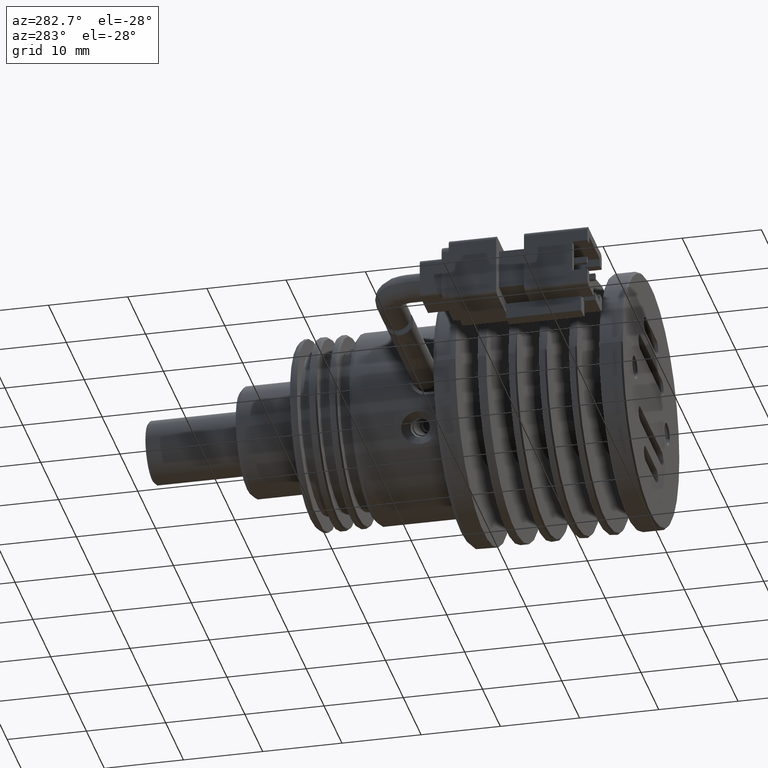
[diagram: clean part render]
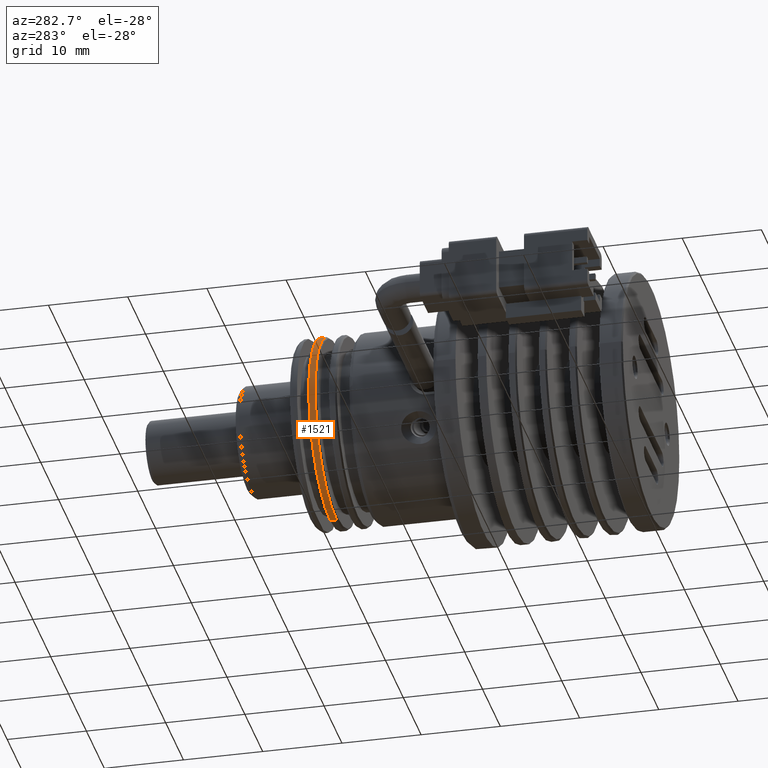
[diagram: same view with one face highlighted and labeled with its STEP entity id]
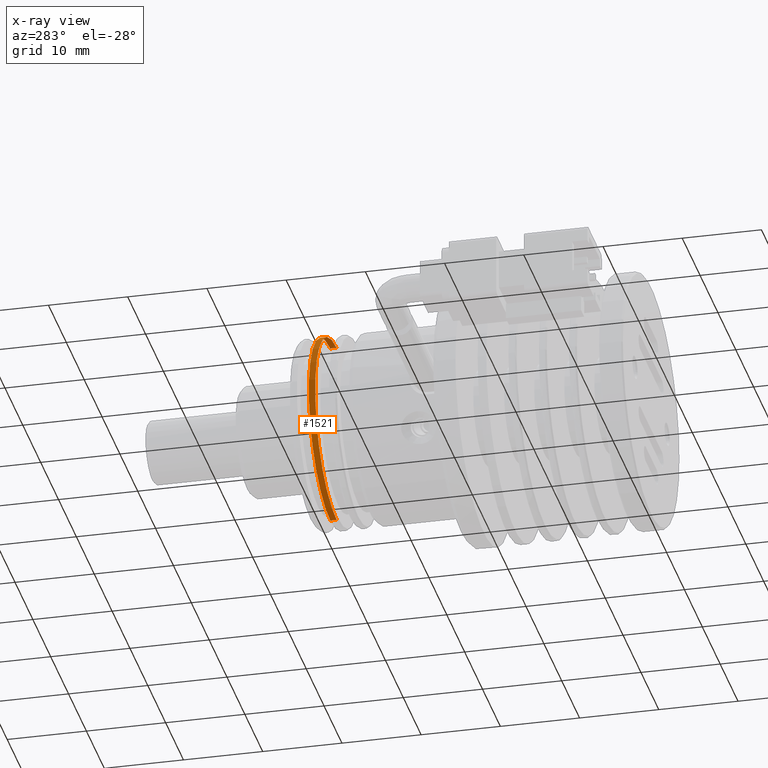
[diagram: x-ray of the same camera — body ghosted, the highlighted face saturated]
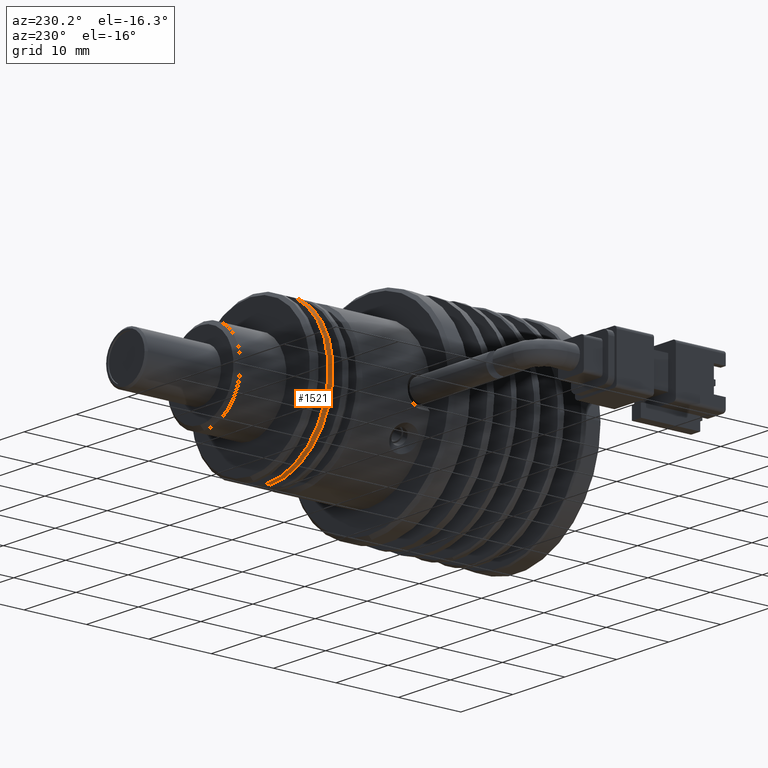
[diagram: same view with one face highlighted and labeled with its STEP entity id]
A machine part, auxiliary view. The second image highlights one B-rep face of the part: STEP entity #1521.
The next image is the same camera in x-ray: the body ghosted, the highlighted face saturated — about 1% of this face is hidden behind the body in this view.
A second angle (auxiliary view) of the same face is appended — the face is thin or edge-on in the first view.
In plain terms, the highlighted cylindrical surface (partial cylindrical patch) has radius 12 mm, axis along (-0, -1, -0).
Its self-contained STEP definition (entity closure, byte-faithful):
#483 = VECTOR ( 'NONE', #17416, 1000.000000000000000 ) ;
#626 = CIRCLE ( 'NONE', #3034, 12.00000000000000400 ) ;
#1140 = AXIS2_PLACEMENT_3D ( 'NONE', #12836, #3712, #14401 ) ;
#1521 = ADVANCED_FACE ( 'NONE', ( #12596 ), #3037, .T. ) ;
#2159 = CARTESIAN_POINT ( 'NONE',  ( 2.574933787635818900, -38.96480397725189000, -9.174035921659385200 ) ) ;
#2250 = ORIENTED_EDGE ( 'NONE', *, *, #15549, .T. ) ;
#2297 = CARTESIAN_POINT ( 'NONE',  ( 2.574933787635818900, 0.7850644899873928700, -21.17403592165938500 ) ) ;
#2970 = DIRECTION ( 'NONE',  ( -0.0000000000000000000, -1.000000000000000000, -0.0000000000000000000 ) ) ;
#2991 = CARTESIAN_POINT ( 'NONE',  ( 2.574933787635819800, 0.7850644899873928700, 2.825964078340615700 ) ) ;
#3034 = AXIS2_PLACEMENT_3D ( 'NONE', #12123, #2970, #13648 ) ;
#3037 = CYLINDRICAL_SURFACE ( 'NONE', #11664, 12.00000000000000000 ) ;
#3712 = DIRECTION ( 'NONE',  ( -0.0000000000000000000, -1.000000000000000000, -0.0000000000000000000 ) ) ;
#4978 = LINE ( 'NONE', #5058, #483 ) ;
#5025 = EDGE_CURVE ( 'NONE', #15901, #9462, #9564, .T. ) ;
#5058 = CARTESIAN_POINT ( 'NONE',  ( 2.574933787635818900, -38.96480397725189000, -21.17403592165938500 ) ) ;
#5080 = DIRECTION ( 'NONE',  ( -0.0000000000000000000, -1.000000000000000000, -0.0000000000000000000 ) ) ;
#5511 = CIRCLE ( 'NONE', #1140, 12.00000000000000000 ) ;
#6114 = VERTEX_POINT ( 'NONE', #2297 ) ;
#9462 = VERTEX_POINT ( 'NONE', #15232 ) ;
#9564 = LINE ( 'NONE', #16240, #17270 ) ;
#9679 = EDGE_CURVE ( 'NONE', #15901, #6114, #5511, .T. ) ;
#11664 = AXIS2_PLACEMENT_3D ( 'NONE', #2159, #5080, #14739 ) ;
#12112 = ORIENTED_EDGE ( 'NONE', *, *, #9679, .T. ) ;
#12123 = CARTESIAN_POINT ( 'NONE',  ( 2.574933787635818900, -0.01493551001260917700, -9.174035921659385200 ) ) ;
#12596 = FACE_OUTER_BOUND ( 'NONE', #12723, .T. ) ;
#12723 = EDGE_LOOP ( 'NONE', ( #13044, #12112, #2250, #17314 ) ) ;
#12836 = CARTESIAN_POINT ( 'NONE',  ( 2.574933787635818900, 0.7850644899873928700, -9.174035921659385200 ) ) ;
#13044 = ORIENTED_EDGE ( 'NONE', *, *, #5025, .F. ) ;
#13648 = DIRECTION ( 'NONE',  ( 0.0000000000000000000, 0.0000000000000000000, 1.000000000000000000 ) ) ;
#14401 = DIRECTION ( 'NONE',  ( 0.0000000000000000000, 0.0000000000000000000, -1.000000000000000000 ) ) ;
#14739 = DIRECTION ( 'NONE',  ( 0.0000000000000000000, 0.0000000000000000000, -1.000000000000000000 ) ) ;
#14874 = DIRECTION ( 'NONE',  ( -0.0000000000000000000, -1.000000000000000000, -0.0000000000000000000 ) ) ;
#15232 = CARTESIAN_POINT ( 'NONE',  ( 2.574933787635819800, -0.01493551001260917700, 2.825964078340618800 ) ) ;
#15549 = EDGE_CURVE ( 'NONE', #6114, #15697, #4978, .T. ) ;
#15697 = VERTEX_POINT ( 'NONE', #17823 ) ;
#15901 = VERTEX_POINT ( 'NONE', #2991 ) ;
#16240 = CARTESIAN_POINT ( 'NONE',  ( 2.574933787635819800, -38.96480397725189000, 2.825964078340615700 ) ) ;
#16578 = EDGE_CURVE ( 'NONE', #9462, #15697, #626, .T. ) ;
#17270 = VECTOR ( 'NONE', #14874, 1000.000000000000000 ) ;
#17314 = ORIENTED_EDGE ( 'NONE', *, *, #16578, .F. ) ;
#17416 = DIRECTION ( 'NONE',  ( -0.0000000000000000000, -1.000000000000000000, -0.0000000000000000000 ) ) ;
#17823 = CARTESIAN_POINT ( 'NONE',  ( 2.574933787635818900, -0.01493551001260917700, -21.17403592165938900 ) ) ;